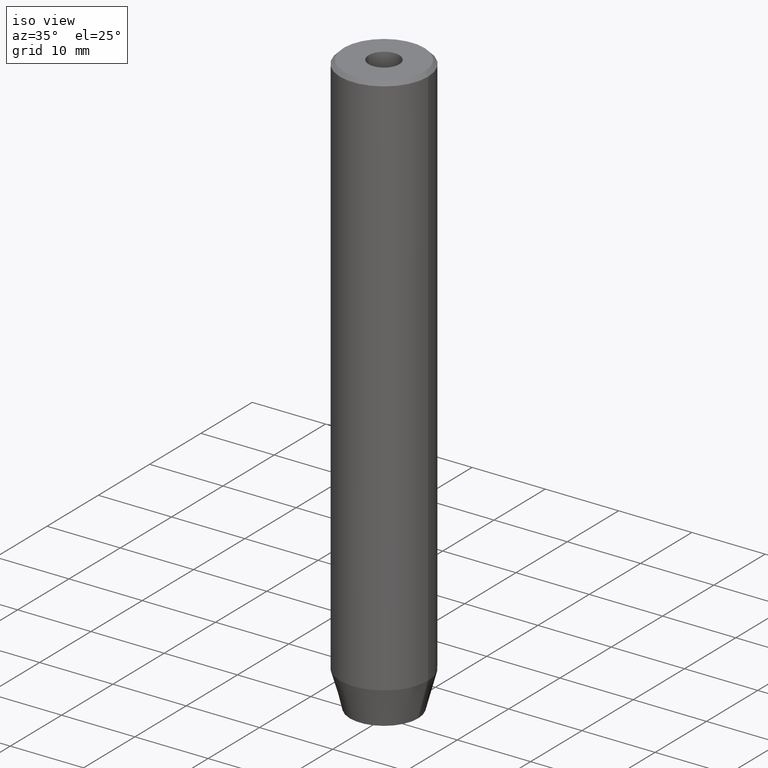
[diagram: clean part render]
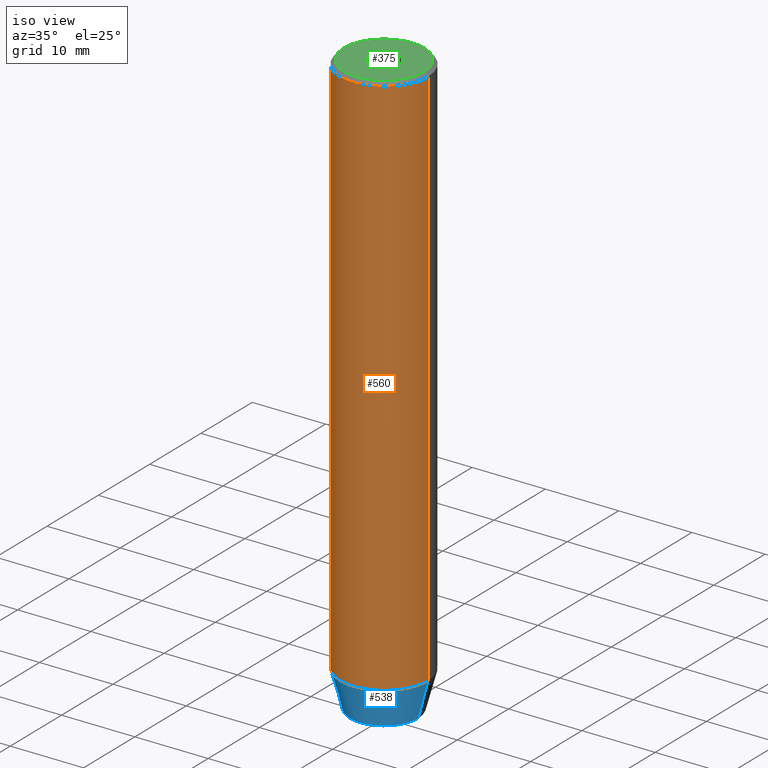
[diagram: same view with three faces highlighted in distinct colors, each labeled with its STEP entity id]
A machine part, iso view with three faces highlighted in distinct colors.
Their STEP definitions:

[orange] entity #560 — the highlighted cylindrical surface (partial cylindrical patch) has radius 6 mm, axis along (-0, -0, 1).
#1 = CARTESIAN_POINT ( 'NONE',  ( 0.000000000000000000, 0.000000000000000000, -0.4999999999999891753 ) ) ;
#9 = EDGE_CURVE ( 'NONE', #205, #222, #98, .T. ) ;
#27 = CARTESIAN_POINT ( 'NONE',  ( 6.000000000000000000, 0.000000000000000000, -0.4999999999999891753 ) ) ;
#43 = CARTESIAN_POINT ( 'NONE',  ( 6.000000000000000000, 0.000000000000000000, 0.000000000000000000 ) ) ;
#45 = DIRECTION ( 'NONE',  ( 1.000000000000000000, 0.000000000000000000, 0.000000000000000000 ) ) ;
#47 = AXIS2_PLACEMENT_3D ( 'NONE', #539, #133, #45 ) ;
#60 = ORIENTED_EDGE ( 'NONE', *, *, #193, .T. ) ;
#98 = CIRCLE ( 'NONE', #266, 6.000000000000000000 ) ;
#122 = CARTESIAN_POINT ( 'NONE',  ( -6.000000000000000000, 7.347880794884119736E-16, -75.00000000000001421 ) ) ;
#127 = DIRECTION ( 'NONE',  ( 1.000000000000000000, 0.000000000000000000, 0.000000000000000000 ) ) ;
#133 = DIRECTION ( 'NONE',  ( -0.000000000000000000, -0.000000000000000000, 1.000000000000000000 ) ) ;
#161 = ORIENTED_EDGE ( 'NONE', *, *, #384, .T. ) ;
#181 = DIRECTION ( 'NONE',  ( 0.000000000000000000, 0.000000000000000000, -1.000000000000000000 ) ) ;
#187 = DIRECTION ( 'NONE',  ( -0.000000000000000000, -0.000000000000000000, 1.000000000000000000 ) ) ;
#193 = EDGE_CURVE ( 'NONE', #527, #410, #371, .T. ) ;
#205 = VERTEX_POINT ( 'NONE', #27 ) ;
#222 = VERTEX_POINT ( 'NONE', #550 ) ;
#226 = VECTOR ( 'NONE', #187, 1000.000000000000000 ) ;
#231 = DIRECTION ( 'NONE',  ( -0.000000000000000000, -0.000000000000000000, 1.000000000000000000 ) ) ;
#266 = AXIS2_PLACEMENT_3D ( 'NONE', #1, #181, #544 ) ;
#277 = VECTOR ( 'NONE', #231, 1000.000000000000000 ) ;
#336 = AXIS2_PLACEMENT_3D ( 'NONE', #353, #531, #127 ) ;
#353 = CARTESIAN_POINT ( 'NONE',  ( 0.000000000000000000, 0.000000000000000000, -75.00000000000001421 ) ) ;
#359 = CYLINDRICAL_SURFACE ( 'NONE', #47, 6.000000000000000000 ) ;
#371 = CIRCLE ( 'NONE', #336, 6.000000000000000000 ) ;
#384 = EDGE_CURVE ( 'NONE', #410, #205, #442, .T. ) ;
#410 = VERTEX_POINT ( 'NONE', #517 ) ;
#411 = LINE ( 'NONE', #454, #277 ) ;
#441 = FACE_OUTER_BOUND ( 'NONE', #443, .T. ) ;
#442 = LINE ( 'NONE', #43, #226 ) ;
#443 = EDGE_LOOP ( 'NONE', ( #476, #60, #161, #472 ) ) ;
#454 = CARTESIAN_POINT ( 'NONE',  ( -6.000000000000000000, 7.347880794884119736E-16, 0.000000000000000000 ) ) ;
#472 = ORIENTED_EDGE ( 'NONE', *, *, #9, .T. ) ;
#476 = ORIENTED_EDGE ( 'NONE', *, *, #587, .F. ) ;
#517 = CARTESIAN_POINT ( 'NONE',  ( 6.000000000000000000, 0.000000000000000000, -75.00000000000001421 ) ) ;
#527 = VERTEX_POINT ( 'NONE', #122 ) ;
#531 = DIRECTION ( 'NONE',  ( -0.000000000000000000, -0.000000000000000000, 1.000000000000000000 ) ) ;
#539 = CARTESIAN_POINT ( 'NONE',  ( 0.000000000000000000, 0.000000000000000000, 0.000000000000000000 ) ) ;
#544 = DIRECTION ( 'NONE',  ( 1.000000000000000000, 0.000000000000000000, 0.000000000000000000 ) ) ;
#550 = CARTESIAN_POINT ( 'NONE',  ( -6.000000000000000000, 7.347880794884119736E-16, -0.4999999999999891753 ) ) ;
#560 = ADVANCED_FACE ( 'NONE', ( #441 ), #359, .T. ) ;
#587 = EDGE_CURVE ( 'NONE', #527, #222, #411, .T. ) ;

[blue] entity #538 — the highlighted conical surface has half-angle 15 deg.
#21 = DIRECTION ( 'NONE',  ( -0.000000000000000000, -0.000000000000000000, 1.000000000000000000 ) ) ;
#58 = CARTESIAN_POINT ( 'NONE',  ( 4.660254037844384634, 0.000000000000000000, -80.00000000000001421 ) ) ;
#61 = DIRECTION ( 'NONE',  ( -0.2588190451025209060, 3.169619151431766790E-17, 0.9659258262890682012 ) ) ;
#65 = EDGE_CURVE ( 'NONE', #313, #410, #284, .T. ) ;
#69 = ORIENTED_EDGE ( 'NONE', *, *, #216, .F. ) ;
#122 = CARTESIAN_POINT ( 'NONE',  ( -6.000000000000000000, 7.347880794884119736E-16, -75.00000000000001421 ) ) ;
#127 = DIRECTION ( 'NONE',  ( 1.000000000000000000, 0.000000000000000000, 0.000000000000000000 ) ) ;
#164 = VECTOR ( 'NONE', #61, 1000.000000000000000 ) ;
#168 = VERTEX_POINT ( 'NONE', #435 ) ;
#172 = LINE ( 'NONE', #201, #164 ) ;
#174 = AXIS2_PLACEMENT_3D ( 'NONE', #583, #350, #541 ) ;
#193 = EDGE_CURVE ( 'NONE', #527, #410, #371, .T. ) ;
#201 = CARTESIAN_POINT ( 'NONE',  ( -6.000000000000000000, 7.347880794884119736E-16, -75.00000000000001421 ) ) ;
#216 = EDGE_CURVE ( 'NONE', #168, #527, #172, .T. ) ;
#284 = LINE ( 'NONE', #505, #459 ) ;
#286 = CARTESIAN_POINT ( 'NONE',  ( 0.000000000000000000, 0.000000000000000000, -80.00000000000001421 ) ) ;
#291 = EDGE_LOOP ( 'NONE', ( #69, #385, #547, #582 ) ) ;
#301 = DIRECTION ( 'NONE',  ( 1.000000000000000000, 0.000000000000000000, 0.000000000000000000 ) ) ;
#313 = VERTEX_POINT ( 'NONE', #58 ) ;
#336 = AXIS2_PLACEMENT_3D ( 'NONE', #353, #531, #127 ) ;
#350 = DIRECTION ( 'NONE',  ( -0.000000000000000000, -0.000000000000000000, 1.000000000000000000 ) ) ;
#353 = CARTESIAN_POINT ( 'NONE',  ( 0.000000000000000000, 0.000000000000000000, -75.00000000000001421 ) ) ;
#358 = AXIS2_PLACEMENT_3D ( 'NONE', #286, #21, #301 ) ;
#371 = CIRCLE ( 'NONE', #336, 6.000000000000000000 ) ;
#385 = ORIENTED_EDGE ( 'NONE', *, *, #504, .T. ) ;
#392 = CONICAL_SURFACE ( 'NONE', #174, 6.000000000000000000, 0.2617993877991495744 ) ;
#399 = FACE_OUTER_BOUND ( 'NONE', #291, .T. ) ;
#410 = VERTEX_POINT ( 'NONE', #517 ) ;
#425 = CIRCLE ( 'NONE', #358, 4.660254037844384634 ) ;
#435 = CARTESIAN_POINT ( 'NONE',  ( -4.660254037844384634, 6.527522992771886302E-16, -80.00000000000001421 ) ) ;
#457 = DIRECTION ( 'NONE',  ( 0.2588190451025209060, 0.000000000000000000, 0.9659258262890682012 ) ) ;
#459 = VECTOR ( 'NONE', #457, 1000.000000000000000 ) ;
#504 = EDGE_CURVE ( 'NONE', #168, #313, #425, .T. ) ;
#505 = CARTESIAN_POINT ( 'NONE',  ( 6.000000000000000000, 0.000000000000000000, -75.00000000000001421 ) ) ;
#517 = CARTESIAN_POINT ( 'NONE',  ( 6.000000000000000000, 0.000000000000000000, -75.00000000000001421 ) ) ;
#527 = VERTEX_POINT ( 'NONE', #122 ) ;
#531 = DIRECTION ( 'NONE',  ( -0.000000000000000000, -0.000000000000000000, 1.000000000000000000 ) ) ;
#538 = ADVANCED_FACE ( 'NONE', ( #399 ), #392, .T. ) ;
#541 = DIRECTION ( 'NONE',  ( 1.000000000000000000, 0.000000000000000000, 0.000000000000000000 ) ) ;
#547 = ORIENTED_EDGE ( 'NONE', *, *, #65, .T. ) ;
#582 = ORIENTED_EDGE ( 'NONE', *, *, #193, .F. ) ;
#583 = CARTESIAN_POINT ( 'NONE',  ( 0.000000000000000000, 0.000000000000000000, -75.00000000000001421 ) ) ;

[green] entity #375 — the highlighted planar face has unit normal (0, -0, 1).
#3 = VERTEX_POINT ( 'NONE', #404 ) ;
#11 = CARTESIAN_POINT ( 'NONE',  ( 0.000000000000000000, 0.000000000000000000, -1.990051048614449116E-16 ) ) ;
#44 = EDGE_LOOP ( 'NONE', ( #357, #128 ) ) ;
#55 = AXIS2_PLACEMENT_3D ( 'NONE', #501, #190, #274 ) ;
#85 = VERTEX_POINT ( 'NONE', #535 ) ;
#89 = VERTEX_POINT ( 'NONE', #567 ) ;
#119 = CIRCLE ( 'NONE', #337, 5.500000000000010658 ) ;
#128 = ORIENTED_EDGE ( 'NONE', *, *, #316, .F. ) ;
#134 = FACE_BOUND ( 'NONE', #44, .T. ) ;
#144 = DIRECTION ( 'NONE',  ( 0.000000000000000000, -0.000000000000000000, 1.000000000000000000 ) ) ;
#148 = CARTESIAN_POINT ( 'NONE',  ( -5.500000000000010658, 0.000000000000000000, 0.000000000000000000 ) ) ;
#153 = DIRECTION ( 'NONE',  ( -0.000000000000000000, -0.000000000000000000, 1.000000000000000000 ) ) ;
#155 = AXIS2_PLACEMENT_3D ( 'NONE', #11, #366, #584 ) ;
#159 = DIRECTION ( 'NONE',  ( 1.000000000000000000, 0.000000000000000000, 0.000000000000000000 ) ) ;
#165 = DIRECTION ( 'NONE',  ( 1.000000000000000000, 0.000000000000000000, 0.000000000000000000 ) ) ;
#190 = DIRECTION ( 'NONE',  ( -0.000000000000000000, -0.000000000000000000, 1.000000000000000000 ) ) ;
#196 = CARTESIAN_POINT ( 'NONE',  ( 0.000000000000000000, 0.000000000000000000, 0.000000000000000000 ) ) ;
#221 = VERTEX_POINT ( 'NONE', #148 ) ;
#261 = CARTESIAN_POINT ( 'NONE',  ( 0.000000000000000000, 0.000000000000000000, 0.000000000000000000 ) ) ;
#274 = DIRECTION ( 'NONE',  ( 1.000000000000000000, 0.000000000000000000, 0.000000000000000000 ) ) ;
#281 = ORIENTED_EDGE ( 'NONE', *, *, #514, .T. ) ;
#287 = CIRCLE ( 'NONE', #524, 5.500000000000010658 ) ;
#295 = DIRECTION ( 'NONE',  ( -0.000000000000000000, -0.000000000000000000, 1.000000000000000000 ) ) ;
#309 = EDGE_CURVE ( 'NONE', #89, #85, #563, .T. ) ;
#316 = EDGE_CURVE ( 'NONE', #85, #89, #391, .T. ) ;
#320 = DIRECTION ( 'NONE',  ( 1.000000000000000000, 0.000000000000000000, 0.000000000000000000 ) ) ;
#337 = AXIS2_PLACEMENT_3D ( 'NONE', #196, #295, #159 ) ;
#339 = CARTESIAN_POINT ( 'NONE',  ( 0.000000000000000000, 0.000000000000000000, 0.000000000000000000 ) ) ;
#357 = ORIENTED_EDGE ( 'NONE', *, *, #309, .F. ) ;
#366 = DIRECTION ( 'NONE',  ( -0.000000000000000000, -0.000000000000000000, 1.000000000000000000 ) ) ;
#375 = ADVANCED_FACE ( 'NONE', ( #134, #418 ), #557, .T. ) ;
#391 = CIRCLE ( 'NONE', #55, 2.099999999999998757 ) ;
#404 = CARTESIAN_POINT ( 'NONE',  ( 5.500000000000010658, 7.041719095097287782E-16, 0.000000000000000000 ) ) ;
#418 = FACE_OUTER_BOUND ( 'NONE', #437, .T. ) ;
#424 = EDGE_CURVE ( 'NONE', #221, #3, #287, .T. ) ;
#433 = ORIENTED_EDGE ( 'NONE', *, *, #424, .T. ) ;
#437 = EDGE_LOOP ( 'NONE', ( #433, #281 ) ) ;
#501 = CARTESIAN_POINT ( 'NONE',  ( 0.000000000000000000, 0.000000000000000000, -1.990051048614449116E-16 ) ) ;
#514 = EDGE_CURVE ( 'NONE', #3, #221, #119, .T. ) ;
#524 = AXIS2_PLACEMENT_3D ( 'NONE', #339, #153, #165 ) ;
#535 = CARTESIAN_POINT ( 'NONE',  ( -2.099999999999998757, 2.571758278209439985E-16, -1.990051048614449116E-16 ) ) ;
#545 = AXIS2_PLACEMENT_3D ( 'NONE', #261, #144, #320 ) ;
#557 = PLANE ( 'NONE',  #545 ) ;
#563 = CIRCLE ( 'NONE', #155, 2.099999999999998757 ) ;
#567 = CARTESIAN_POINT ( 'NONE',  ( 2.099999999999998757, 0.000000000000000000, -1.990051048614449116E-16 ) ) ;
#584 = DIRECTION ( 'NONE',  ( 1.000000000000000000, 0.000000000000000000, 0.000000000000000000 ) ) ;